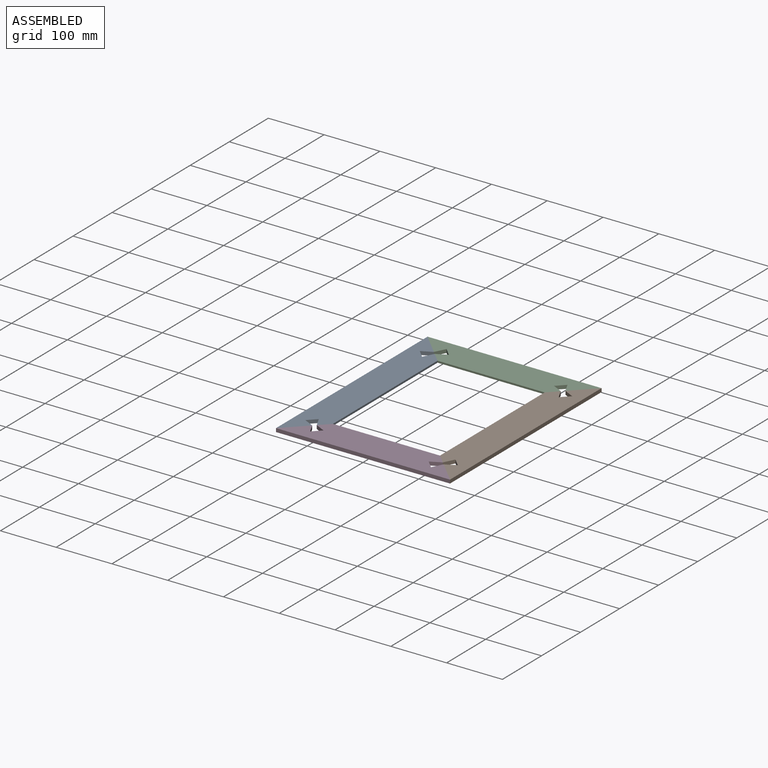
[diagram: assembled view]
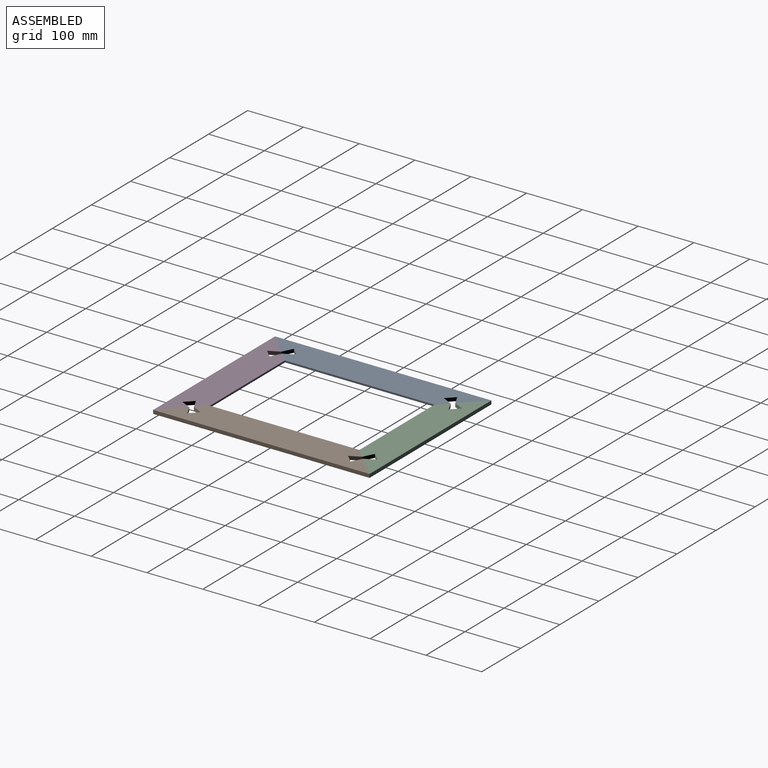
[diagram: assembled view, second angle]
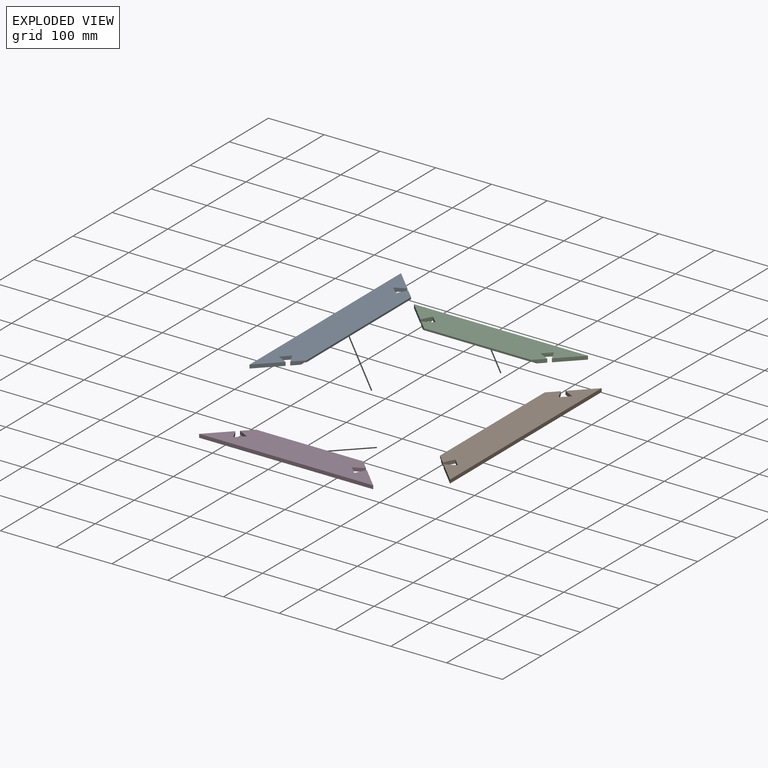
[diagram: exploded view]
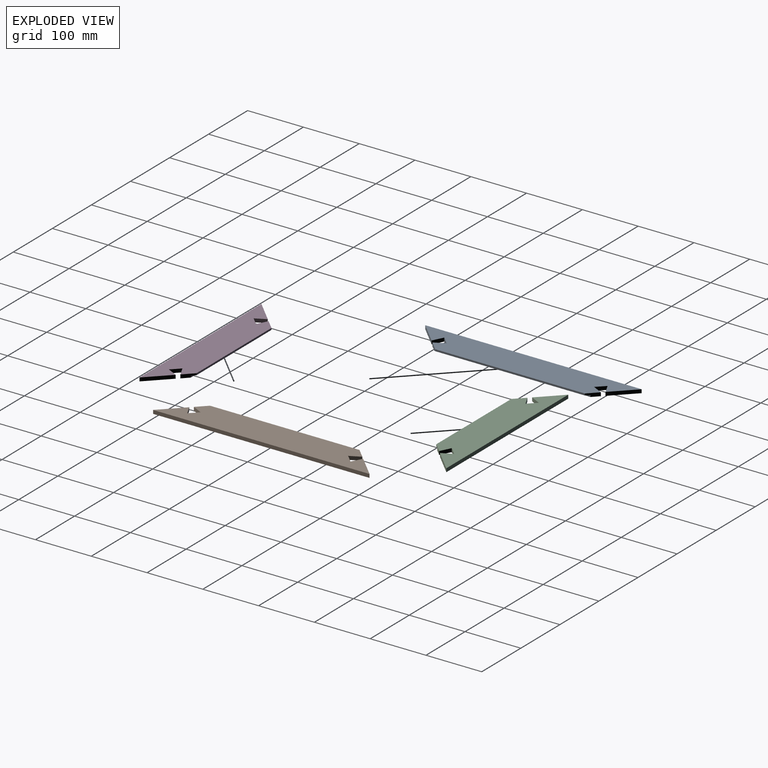
[diagram: exploded view, second angle]
ASSEMBLY  parts=4 mates=3
PART A: 16 faces, bbox 60x388x6.4 mm
  f0: plane 268x3.18mm, normal (1,0,0), area 852.2mm2, adj f1,f11,f12,f15
  f1: plane 16.97x16.97mm, normal (0.71,0.71,0), area 125.5mm2, adj f0,f2,f12,f13,f14,f15
  f2: plane 18.74x9.55mm, normal (-0.89,0.45,0), area 133.5mm2, adj f1,f3,f12,f13
  f3: plane 14.14x14.14mm, normal (0.71,0.71,0), area 127mm2, adj f2,f4,f12,f13
  f4: plane 18.74x9.55mm, normal (0.45,-0.89,0), area 133.5mm2, adj f3,f5,f12,f13
  f5: plane 38.08x38.08mm, normal (0.71,0.71,0), area 342mm2, adj f4,f6,f12,f13
  f6: plane 388x6.35mm, normal (-1,0,0), area 2463.8mm2, adj f5,f7,f12,f13
  f7: plane 38.08x38.08mm, normal (0.71,-0.71,0), area 342mm2, adj f6,f8,f12,f13
  f8: plane 18.74x9.55mm, normal (0.45,0.89,0), area 133.5mm2, adj f7,f9,f12,f13
  f9: plane 14.14x14.14mm, normal (0.71,-0.71,0), area 127mm2, adj f8,f10,f12,f13
  f10: plane 18.74x9.55mm, normal (-0.89,-0.45,0), area 133.5mm2, adj f9,f11,f12,f13
  f11: plane 16.97x16.97mm, normal (0.71,-0.71,0), area 125.5mm2, adj f0,f10,f12,f13,f14,f15
  f12: plane 388x60mm, normal (0,0,1), area 19140mm2, adj f0,f1,f2,f3,f4,f5,f6,f7
  f13: plane 388x54mm, normal (0,0,-1), area 17496mm2, adj f1,f2,f3,f4,f5,f6,f7,f8
  f14: plane 280x3.17mm, normal (1,0,0), area 887.6mm2, adj f1,f11,f13,f15
  f15: plane 280x6mm, normal (0,0,-1), area 1644mm2, adj f0,f1,f11,f14
PART B: same geometry as A
PART C: 16 faces, bbox 312x60x6.4 mm
  f0: plane 192x3.18mm, normal (0,-1,0), area 610.6mm2, adj f1,f11,f12,f15
  f1: plane 16.97x16.97mm, normal (0.71,-0.71,0), area 125.5mm2, adj f0,f2,f12,f13,f14,f15
  f2: plane 18.74x9.55mm, normal (0.45,0.89,0), area 133.5mm2, adj f1,f3,f12,f13
  f3: plane 14.14x14.14mm, normal (0.71,-0.71,0), area 127mm2, adj f2,f4,f12,f13
  f4: plane 18.74x9.55mm, normal (-0.89,-0.45,0), area 133.5mm2, adj f3,f5,f12,f13
  f5: plane 38.08x38.08mm, normal (0.71,-0.71,0), area 342mm2, adj f4,f6,f12,f13
  f6: plane 312x6.35mm, normal (0,1,0), area 1981.2mm2, adj f5,f7,f12,f13
  f7: plane 38.08x38.08mm, normal (-0.71,-0.71,0), area 342mm2, adj f6,f8,f12,f13
  f8: plane 18.74x9.55mm, normal (0.89,-0.45,0), area 133.5mm2, adj f7,f9,f12,f13
  f9: plane 14.14x14.14mm, normal (-0.71,-0.71,0), area 127mm2, adj f8,f10,f12,f13
  f10: plane 18.74x9.55mm, normal (-0.45,0.89,0), area 133.5mm2, adj f9,f11,f12,f13
  f11: plane 16.97x16.97mm, normal (-0.71,-0.71,0), area 125.5mm2, adj f0,f10,f12,f13,f14,f15
  f12: plane 312x60mm, normal (0,0,1), area 14580mm2, adj f0,f1,f2,f3,f4,f5,f6,f7
  f13: plane 312x54mm, normal (0,0,-1), area 13392mm2, adj f1,f2,f3,f4,f5,f6,f7,f8
  f14: plane 204x3.17mm, normal (0,-1,0), area 646.7mm2, adj f1,f11,f13,f15
  f15: plane 204x6mm, normal (0,0,-1), area 1188mm2, adj f0,f1,f11,f14
PART D: same geometry as C
PLACE A t=(0,194,0)mm
PLACE B rot(axis=(0,0,-1),180deg) t=(0,194,0)mm
PLACE C rot(axis=(0,0,1),0deg) t=(0,194,0)mm
PLACE D rot(axis=(0,0,1),180deg) t=(0,194,0)mm
MATE fastened A.f7 <-> D.f5  axis (0.71,-0.71,0) through (-156,0,3.18)mm
MATE fastened C.f5 <-> B.f7  axis (0.71,-0.71,0) through (156,388,3.18)mm
MATE fastened B.f5 <-> D.f7  axis (-0.71,-0.71,0) through (156,0,3.18)mm
